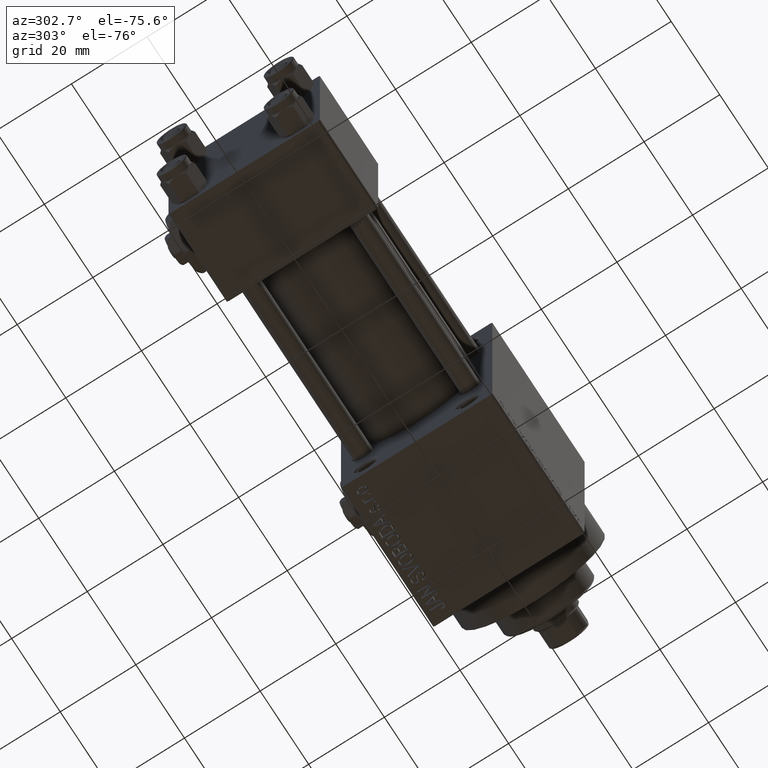
[diagram: clean part render]
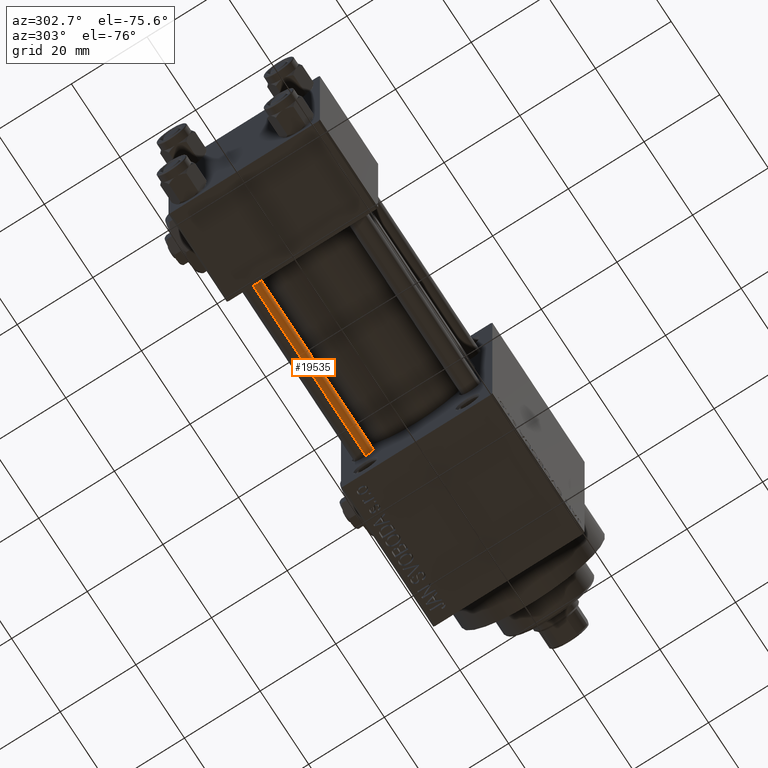
[diagram: same view with one face highlighted and labeled with its STEP entity id]
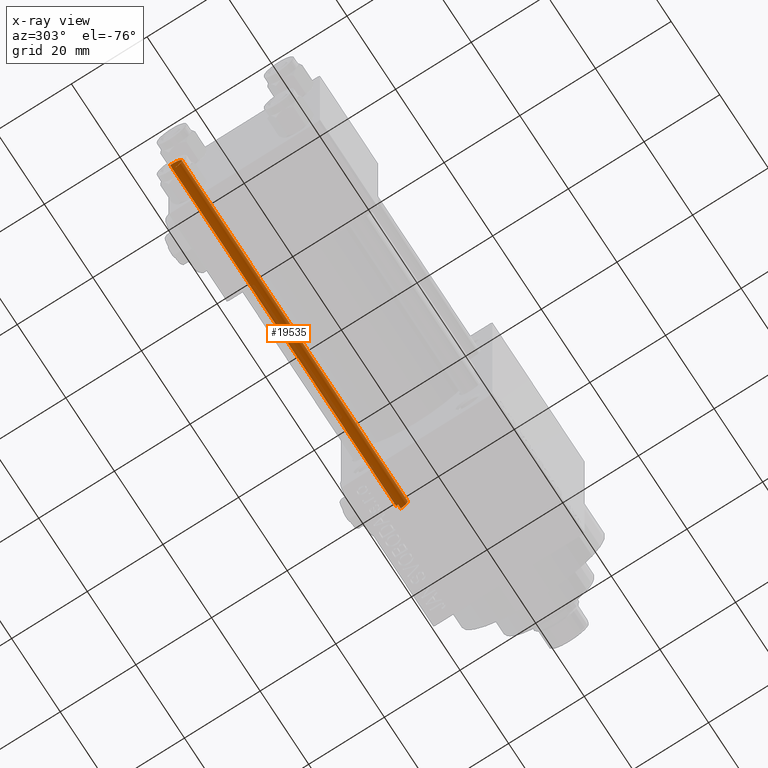
[diagram: x-ray of the same camera — body ghosted, the highlighted face saturated]
A machine part, auxiliary view. The second image highlights one B-rep face of the part: STEP entity #19535.
The next image is the same camera in x-ray: the body ghosted, the highlighted face saturated — about 3% of this face is hidden behind the body in this view.
In plain terms, the highlighted cylindrical surface (edge-blend (fillet) strip) has radius 2.5 mm, axis along (1, -0, 0).
Its self-contained STEP definition (entity closure, byte-faithful):
#252 = EDGE_CURVE ( 'NONE', #45517, #5818, #3975, .T. ) ;
#517 = VECTOR ( 'NONE', #22906, 1000.000000000000000 ) ;
#1356 = CARTESIAN_POINT ( 'NONE',  ( 0.000000000000000000, 0.000000000000000000, 93.50000000000001421 ) ) ;
#3975 = LINE ( 'NONE', #15191, #517 ) ;
#5793 = CARTESIAN_POINT ( 'NONE',  ( -2.500000000000000000, 0.000000000000000000, 94.00000000000000000 ) ) ;
#5818 = VERTEX_POINT ( 'NONE', #11433 ) ;
#6563 = EDGE_CURVE ( 'NONE', #29774, #33598, #39913, .T. ) ;
#7565 = CARTESIAN_POINT ( 'NONE',  ( 0.000000000000000000, 0.000000000000000000, 94.00000000000000000 ) ) ;
#9479 = AXIS2_PLACEMENT_3D ( 'NONE', #12755, #43150, #19496 ) ;
#10780 = EDGE_CURVE ( 'NONE', #45517, #29774, #16693, .T. ) ;
#11433 = CARTESIAN_POINT ( 'NONE',  ( 2.500000000000000000, 3.061616997868383141E-16, 0.5000000000000004441 ) ) ;
#12755 = CARTESIAN_POINT ( 'NONE',  ( 0.000000000000000000, 0.000000000000000000, 0.5000000000000004441 ) ) ;
#13466 = VECTOR ( 'NONE', #43914, 1000.000000000000000 ) ;
#15112 = ORIENTED_EDGE ( 'NONE', *, *, #10780, .T. ) ;
#15191 = CARTESIAN_POINT ( 'NONE',  ( 2.500000000000000000, 3.061616997868383141E-16, 94.00000000000000000 ) ) ;
#15723 = ORIENTED_EDGE ( 'NONE', *, *, #35724, .T. ) ;
#16500 = CARTESIAN_POINT ( 'NONE',  ( 2.500000000000000000, 3.061616997868383141E-16, 93.50000000000001421 ) ) ;
#16693 = CIRCLE ( 'NONE', #19855, 2.500000000000000000 ) ;
#19019 = DIRECTION ( 'NONE',  ( -1.000000000000000000, 0.000000000000000000, 0.000000000000000000 ) ) ;
#19243 = EDGE_LOOP ( 'NONE', ( #28726, #15112, #38164, #15723 ) ) ;
#19496 = DIRECTION ( 'NONE',  ( 1.000000000000000000, 0.000000000000000000, 0.000000000000000000 ) ) ;
#19535 = ADVANCED_FACE ( 'NONE', ( #41690 ), #26499, .T. ) ;
#19855 = AXIS2_PLACEMENT_3D ( 'NONE', #1356, #24288, #46698 ) ;
#21779 = DIRECTION ( 'NONE',  ( -0.000000000000000000, -0.000000000000000000, -1.000000000000000000 ) ) ;
#22906 = DIRECTION ( 'NONE',  ( -0.000000000000000000, -0.000000000000000000, -1.000000000000000000 ) ) ;
#23459 = AXIS2_PLACEMENT_3D ( 'NONE', #7565, #21779, #19019 ) ;
#24288 = DIRECTION ( 'NONE',  ( 0.000000000000000000, 0.000000000000000000, -1.000000000000000000 ) ) ;
#26499 = CYLINDRICAL_SURFACE ( 'NONE', #23459, 2.500000000000000000 ) ;
#27777 = CIRCLE ( 'NONE', #9479, 2.500000000000000000 ) ;
#27926 = CARTESIAN_POINT ( 'NONE',  ( -2.500000000000000000, 0.000000000000000000, 93.50000000000001421 ) ) ;
#28726 = ORIENTED_EDGE ( 'NONE', *, *, #252, .F. ) ;
#29774 = VERTEX_POINT ( 'NONE', #27926 ) ;
#33598 = VERTEX_POINT ( 'NONE', #35249 ) ;
#35249 = CARTESIAN_POINT ( 'NONE',  ( -2.500000000000000000, 0.000000000000000000, 0.5000000000000004441 ) ) ;
#35724 = EDGE_CURVE ( 'NONE', #33598, #5818, #27777, .T. ) ;
#38164 = ORIENTED_EDGE ( 'NONE', *, *, #6563, .T. ) ;
#39913 = LINE ( 'NONE', #5793, #13466 ) ;
#41690 = FACE_OUTER_BOUND ( 'NONE', #19243, .T. ) ;
#43150 = DIRECTION ( 'NONE',  ( -0.000000000000000000, -0.000000000000000000, 1.000000000000000000 ) ) ;
#43914 = DIRECTION ( 'NONE',  ( -0.000000000000000000, -0.000000000000000000, -1.000000000000000000 ) ) ;
#45517 = VERTEX_POINT ( 'NONE', #16500 ) ;
#46698 = DIRECTION ( 'NONE',  ( 1.000000000000000000, 0.000000000000000000, 0.000000000000000000 ) ) ;